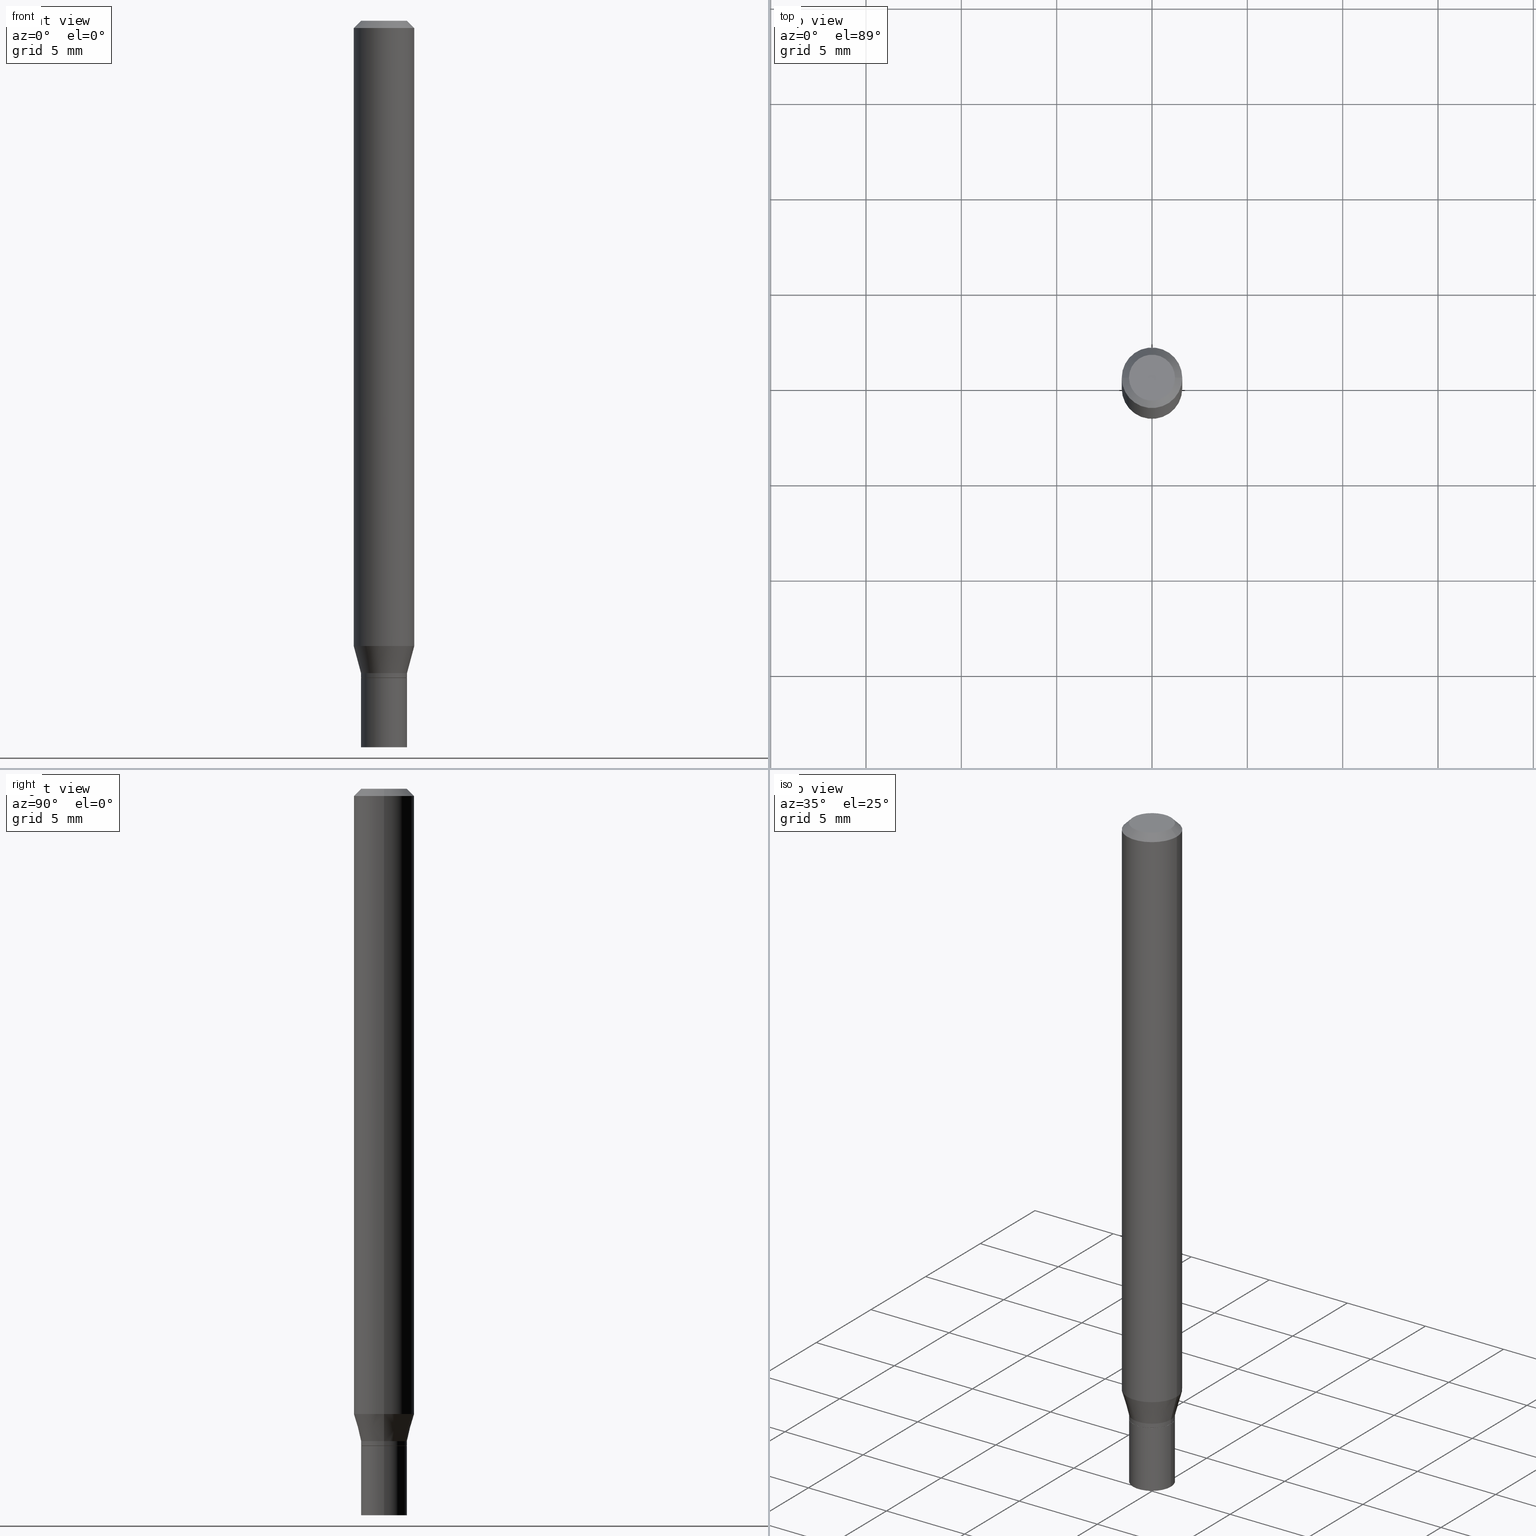
[diagram: canonical four-view strip — front | top / right | iso, engineering-drawing reading convention]
A machine part, canonical four-view strip (front | top / right | iso — engineering-drawing reading convention). The complete STEP part file that produces these views, byte-faithful:
ISO-10303-21;
HEADER;
FILE_DESCRIPTION (( 'STEP AP203' ),
    '1' );
FILE_NAME ('00436.STEP',
    '2024-03-19T21:17:59',
    ( '' ),
    ( '' ),
    'SwSTEP 2.0',
    'SolidWorks 2023',
    '' );
FILE_SCHEMA (( 'CONFIG_CONTROL_DESIGN' ));
ENDSEC;

DATA;
#1 = CIRCLE ( 'NONE', #263, 0.06250000000000000000 ) ;
#2 = EDGE_CURVE ( 'NONE', #197, #331, #219, .T. ) ;
#3 = ORIENTED_EDGE ( 'NONE', *, *, #240, .F. ) ;
#4 = CARTESIAN_POINT ( 'NONE',  ( 0.04749999999999999362, -5.069630904000245946E-15, -1.356999999999999984 ) ) ;
#5 = DIRECTION ( 'NONE',  ( -2.445468806185136877E-29, 3.491481338843145188E-15, 1.000000000000000000 ) ) ;
#6 = ORIENTED_EDGE ( 'NONE', *, *, #265, .T. ) ;
#7 = FACE_OUTER_BOUND ( 'NONE', #135, .T. ) ;
#8 = DIRECTION ( 'NONE',  ( 1.000000000000000000, -6.982962677686262766E-15, 0.000000000000000000 ) ) ;
#9 = ORIENTED_EDGE ( 'NONE', *, *, #316, .F. ) ;
#10 = DIRECTION ( 'NONE',  ( 1.000000000000000000, -6.982962677686272233E-15, 0.000000000000000000 ) ) ;
#11 = CONICAL_SURFACE ( 'NONE', #274, 0.04699999999999999317, 0.7853981633974739252 ) ;
#12 = CC_DESIGN_APPROVAL ( #32, ( #192 ) ) ;
#13 = DIRECTION ( 'NONE',  ( 1.000000000000000000, -6.982962677686273810E-15, 0.000000000000000000 ) ) ;
#14 = CARTESIAN_POINT ( 'NONE',  ( 3.668203209277705088E-31, -5.237222008264718399E-17, -0.01499999999999999944 ) ) ;
#15 = FACE_OUTER_BOUND ( 'NONE', #271, .T. ) ;
#16 = EDGE_CURVE ( 'NONE', #155, #393, #394, .T. ) ;
#17 = DIRECTION ( 'NONE',  ( 1.000000000000000000, -6.982962677686266711E-15, 4.876176775795935793E-29 ) ) ;
#18 = AXIS2_PLACEMENT_3D ( 'NONE', #430, #317, #131 ) ;
#19 = AXIS2_PLACEMENT_3D ( 'NONE', #215, #77, #140 ) ;
#20 = ORIENTED_EDGE ( 'NONE', *, *, #28, .T. ) ;
#21 = LENGTH_MEASURE_WITH_UNIT ( LENGTH_MEASURE( 0.02539999999999999897 ), #122 );
#22 = PRODUCT_DEFINITION_FORMATION_WITH_SPECIFIED_SOURCE ( 'ANY', '', #400, .NOT_KNOWN. ) ;
#23 = CARTESIAN_POINT ( 'NONE',  ( 3.294046481931379390E-29, -4.703025363421717574E-15, -1.347000000000000197 ) ) ;
#24 = ORIENTED_EDGE ( 'NONE', *, *, #139, .F. ) ;
#25 = COORDINATED_UNIVERSAL_TIME_OFFSET ( 5, 0, .BEHIND. ) ;
#26 = ORIENTED_EDGE ( 'NONE', *, *, #398, .F. ) ;
#27 = PERSON_AND_ORGANIZATION ( #418, #34 ) ;
#28 = EDGE_CURVE ( 'NONE', #119, #426, #335, .T. ) ;
#29 = DIRECTION ( 'NONE',  ( 1.000000000000000000, -6.982962677686267499E-15, 4.876176775795935793E-29 ) ) ;
#30 = CARTESIAN_POINT ( 'NONE',  ( 0.000000000000000000, 0.000000000000000000, 0.000000000000000000 ) ) ;
#31 = ORIENTED_EDGE ( 'NONE', *, *, #16, .F. ) ;
#32 = APPROVAL ( #100, 'UNSPECIFIED' ) ;
#33 = CIRCLE ( 'NONE', #303, 0.04749999999999993117 ) ;
#34 = ORGANIZATION ( 'UNSPECIFIED', 'UNSPECIFIED', '' ) ;
#35 = CARTESIAN_POINT ( 'NONE',  ( -0.04749999999999991729, -4.398686636654680226E-15, -1.356500000000000039 ) ) ;
#36 = APPROVAL_ROLE ( '' ) ;
#37 = PRODUCT_DEFINITION_SHAPE ( 'NONE', 'NONE',  #192 ) ;
#38 = CC_DESIGN_PERSON_AND_ORGANIZATION_ASSIGNMENT ( #132, #466, ( #400 ) ) ;
#39 = LINE ( 'NONE', #174, #41 ) ;
#40 = CYLINDRICAL_SURFACE ( 'NONE', #95, 0.06250000000000000000 ) ;
#41 = VECTOR ( 'NONE', #397, 39.37007874015748143 ) ;
#42 = CARTESIAN_POINT ( 'NONE',  ( -0.04749999999999993117, -4.214498965626852086E-15, -1.347000000000000197 ) ) ;
#43 =( GEOMETRIC_REPRESENTATION_CONTEXT ( 3 ) GLOBAL_UNCERTAINTY_ASSIGNED_CONTEXT ( ( #416 ) ) GLOBAL_UNIT_ASSIGNED_CONTEXT ( ( #423, #433, #238 ) ) REPRESENTATION_CONTEXT ( 'NONE', 'WORKASPACE' ) );
#44 = DIRECTION ( 'NONE',  ( -2.445468806185136597E-29, 3.491481338843145583E-15, 1.000000000000000000 ) ) ;
#45 = CARTESIAN_POINT ( 'NONE',  ( -0.04699999999999999317, -4.403985091002901839E-15, -1.356999999999999984 ) ) ;
#46 = CARTESIAN_POINT ( 'NONE',  ( 0.04699999999999999317, -5.066139422661402938E-15, -1.356999999999999984 ) ) ;
#47 = CARTESIAN_POINT ( 'NONE',  ( 3.317278435590138134E-29, -4.736194436140727720E-15, -1.356500000000000039 ) ) ;
#48 = APPROVAL ( #427, 'UNSPECIFIED' ) ;
#49 = CARTESIAN_POINT ( 'NONE',  ( 3.668203209277705088E-31, -5.237222008264718399E-17, -0.01499999999999999944 ) ) ;
#50 = LINE ( 'NONE', #436, #237 ) ;
#51 = CIRCLE ( 'NONE', #387, 0.04749999999999999362 ) ;
#52 = FACE_OUTER_BOUND ( 'NONE', #267, .T. ) ;
#53 = ADVANCED_FACE ( 'NONE', ( #104 ), #443, .T. ) ;
#54 = CARTESIAN_POINT ( 'NONE',  ( 0.04749999999999999362, -5.568912735454815688E-15, -1.500000000000000222 ) ) ;
#55 = CIRCLE ( 'NONE', #220, 0.04749999999999993117 ) ;
#56 = DIMENSIONAL_EXPONENTS ( 1.000000000000000000, 0.000000000000000000, 0.000000000000000000, 0.000000000000000000, 0.000000000000000000, 0.000000000000000000, 0.000000000000000000 ) ;
#57 = VERTEX_POINT ( 'NONE', #338 ) ;
#58 = ORIENTED_EDGE ( 'NONE', *, *, #151, .F. ) ;
#59 = ORIENTED_EDGE ( 'NONE', *, *, #110, .T. ) ;
#60 = PERSON_AND_ORGANIZATION_ROLE ( 'design_supplier' ) ;
#61 = CIRCLE ( 'NONE', #449, 0.04749999999999991729 ) ;
#62 = ORIENTED_EDGE ( 'NONE', *, *, #28, .F. ) ;
#63 = APPROVAL_DATE_TIME ( #272, #48 ) ;
#64 = ORIENTED_EDGE ( 'NONE', *, *, #315, .F. ) ;
#65 = EDGE_CURVE ( 'NONE', #269, #127, #362, .T. ) ;
#66 = AXIS2_PLACEMENT_3D ( 'NONE', #276, #98, #284 ) ;
#67 = APPROVAL_PERSON_ORGANIZATION ( #460, #48, #392 ) ;
#68 = ADVANCED_FACE ( 'NONE', ( #329 ), #258, .F. ) ;
#69 = ORIENTED_EDGE ( 'NONE', *, *, #195, .F. ) ;
#70 = CARTESIAN_POINT ( 'NONE',  ( -0.04749999999999999362, -4.650073293051385418E-15, -1.500000000000000222 ) ) ;
#71 = DIRECTION ( 'NONE',  ( 0.000000000000000000, 0.000000000000000000, 1.000000000000000000 ) ) ;
#72 = DIRECTION ( 'NONE',  ( -2.445468806185136877E-29, 3.491481338843145188E-15, 1.000000000000000000 ) ) ;
#73 = CARTESIAN_POINT ( 'NONE',  ( 3.318501169993230375E-29, -4.737940176810148435E-15, -1.356999999999999984 ) ) ;
#74 = AXIS2_PLACEMENT_3D ( 'NONE', #261, #381, #154 ) ;
#75 = CYLINDRICAL_SURFACE ( 'NONE', #185, 0.04749999999999999362 ) ;
#76 = AXIS2_PLACEMENT_3D ( 'NONE', #378, #291, #368 ) ;
#77 = DIRECTION ( 'NONE',  ( -2.445468806185136597E-29, 3.491481338843145583E-15, 1.000000000000000000 ) ) ;
#78 = DIRECTION ( 'NONE',  ( -2.445468806185136597E-29, 3.491481338843145583E-15, 1.000000000000000000 ) ) ;
#79 = DIRECTION ( 'NONE',  ( -2.445468806185136597E-29, 3.491481338843145583E-15, 1.000000000000000000 ) ) ;
#80 = CARTESIAN_POINT ( 'NONE',  ( -0.04749999999999999362, 3.375077994860475429E-16, -2.336494167871079910E-30 ) ) ;
#81 = DIRECTION ( 'NONE',  ( 1.000000000000000000, -6.982962677686271444E-15, 0.000000000000000000 ) ) ;
#82 = ORIENTED_EDGE ( 'NONE', *, *, #315, .T. ) ;
#83 = VECTOR ( 'NONE', #221, 39.37007874015748143 ) ;
#84 = AXIS2_PLACEMENT_3D ( 'NONE', #346, #307, #29 ) ;
#85 = CARTESIAN_POINT ( 'NONE',  ( 3.294046481931379390E-29, -4.703025363421717574E-15, -1.347000000000000197 ) ) ;
#86 = DIRECTION ( 'NONE',  ( -2.445468806185136877E-29, 3.491481338843145188E-15, 1.000000000000000000 ) ) ;
#87 = VECTOR ( 'NONE', #72, 39.37007874015748143 ) ;
#88 = ORIENTED_EDGE ( 'NONE', *, *, #204, .F. ) ;
#89 = APPROVAL_DATE_TIME ( #236, #32 ) ;
#90 = CARTESIAN_POINT ( 'NONE',  ( -0.04749999999999999362, -4.650073293051385418E-15, -1.356999999999999984 ) ) ;
#91 = CARTESIAN_POINT ( 'NONE',  ( -0.04699999999999999317, -4.401335863828790638E-15, -1.356999999999999984 ) ) ;
#92 = ORIENTED_EDGE ( 'NONE', *, *, #164, .F. ) ;
#93 = EDGE_CURVE ( 'NONE', #125, #297, #50, .T. ) ;
#94 = COORDINATED_UNIVERSAL_TIME_OFFSET ( 5, 0, .BEHIND. ) ;
#95 = AXIS2_PLACEMENT_3D ( 'NONE', #30, #169, #319 ) ;
#96 = AXIS2_PLACEMENT_3D ( 'NONE', #411, #44, #404 ) ;
#97 = DIRECTION ( 'NONE',  ( 1.000000000000000000, -6.982962677686271444E-15, 0.000000000000000000 ) ) ;
#98 = DIRECTION ( 'NONE',  ( -2.445468806185136597E-29, 3.491481338843145583E-15, 1.000000000000000000 ) ) ;
#99 = DATE_TIME_ROLE ( 'classification_date' ) ;
#100 = APPROVAL_STATUS ( 'not_yet_approved' ) ;
#101 = CARTESIAN_POINT ( 'NONE',  ( 0.04749999999999999362, -3.316907271900976589E-16, 2.316183968503069081E-30 ) ) ;
#102 = ORIENTED_EDGE ( 'NONE', *, *, #339, .F. ) ;
#103 = DIRECTION ( 'NONE',  ( 2.438088387897960049E-29, -3.491481338843145188E-15, -1.000000000000000000 ) ) ;
#104 = FACE_OUTER_BOUND ( 'NONE', #283, .T. ) ;
#105 = CARTESIAN_POINT ( 'NONE',  ( 3.294046481931379390E-29, -4.703025363421717574E-15, -1.347000000000000197 ) ) ;
#106 = EDGE_LOOP ( 'NONE', ( #20, #226 ) ) ;
#107 = DIRECTION ( 'NONE',  ( 1.000000000000000000, -6.982962677686261977E-15, 0.000000000000000000 ) ) ;
#108 = DESIGN_CONTEXT ( 'detailed design', #437, 'design' ) ;
#109 = PLANE ( 'NONE',  #262 ) ;
#110 = EDGE_CURVE ( 'NONE', #351, #144, #214, .T. ) ;
#111 = DIRECTION ( 'NONE',  ( -2.445468806185136877E-29, 3.491481338843145188E-15, 1.000000000000000000 ) ) ;
#112 = CYLINDRICAL_SURFACE ( 'NONE', #19, 0.04749999999999991729 ) ;
#113 = EDGE_LOOP ( 'NONE', ( #458, #165, #260, #353 ) ) ;
#114 = DIRECTION ( 'NONE',  ( 2.445468806185136597E-29, -3.491481338843145583E-15, -1.000000000000000000 ) ) ;
#115 = DIRECTION ( 'NONE',  ( 1.000000000000000000, -6.982962677686271444E-15, 0.000000000000000000 ) ) ;
#116 = CC_DESIGN_PERSON_AND_ORGANIZATION_ASSIGNMENT ( #277, #227, ( #192 ) ) ;
#117 = APPLICATION_CONTEXT ( 'configuration controlled 3d designs of mechanical parts and assemblies' ) ;
#118 = DIRECTION ( 'NONE',  ( 1.000000000000000000, -6.982962677686265922E-15, 4.876176775795935793E-29 ) ) ;
#119 = VERTEX_POINT ( 'NONE', #4 ) ;
#120 = FACE_OUTER_BOUND ( 'NONE', #421, .T. ) ;
#121 = EDGE_CURVE ( 'NONE', #155, #426, #298, .T. ) ;
#122 =( LENGTH_UNIT ( ) NAMED_UNIT ( * ) SI_UNIT ( $, .METRE. ) );
#123 = MANIFOLD_SOLID_BREP ( 'Body-Move/Copy2[2]', #207 ) ;
#124 = CIRCLE ( 'NONE', #417, 0.04749999999999999362 ) ;
#125 = VERTEX_POINT ( 'NONE', #371 ) ;
#126 = CALENDAR_DATE ( 2024, 19, 3 ) ;
#127 = VERTEX_POINT ( 'NONE', #42 ) ;
#128 = DATE_AND_TIME ( #268, #187 ) ;
#129 = ORIENTED_EDGE ( 'NONE', *, *, #139, .T. ) ;
#130 = CALENDAR_DATE ( 2024, 19, 3 ) ;
#131 = DIRECTION ( 'NONE',  ( 1.000000000000000000, -6.982962677686272233E-15, 0.000000000000000000 ) ) ;
#132 = PERSON_AND_ORGANIZATION ( #418, #34 ) ;
#133 = FACE_OUTER_BOUND ( 'NONE', #408, .T. ) ;
#134 = ADVANCED_FACE ( 'NONE', ( #186 ), #217, .T. ) ;
#135 = EDGE_LOOP ( 'NONE', ( #445, #198, #69, #88 ) ) ;
#136 = LINE ( 'NONE', #323, #83 ) ;
#137 = AXIS2_PLACEMENT_3D ( 'NONE', #153, #146, #305 ) ;
#138 = CARTESIAN_POINT ( 'NONE',  ( 3.316907271900976096E-16, 0.04749999999999999362, -1.264584670729918775E-16 ) ) ;
#139 = EDGE_CURVE ( 'NONE', #127, #178, #39, .T. ) ;
#140 = DIRECTION ( 'NONE',  ( 1.000000000000000000, -6.982962677686267499E-15, 4.876176775795935793E-29 ) ) ;
#141 = ADVANCED_BREP_SHAPE_REPRESENTATION ( '00436', ( #280, #123, #304 ), #43 ) ;
#142 = DIRECTION ( 'NONE',  ( -2.445468806185136597E-29, 3.491481338843145583E-15, 1.000000000000000000 ) ) ;
#143 = FACE_OUTER_BOUND ( 'NONE', #384, .T. ) ;
#144 = VERTEX_POINT ( 'NONE', #442 ) ;
#145 = CARTESIAN_POINT ( 'NONE',  ( 3.318501169993230375E-29, -4.737940176810148435E-15, -1.356999999999999984 ) ) ;
#146 = DIRECTION ( 'NONE',  ( -2.445468806185136597E-29, 3.491481338843145583E-15, 1.000000000000000000 ) ) ;
#147 = PLANE ( 'NONE',  #74 ) ;
#148 = ORIENTED_EDGE ( 'NONE', *, *, #345, .T. ) ;
#149 = VECTOR ( 'NONE', #409, 39.37007874015748143 ) ;
#150 = CARTESIAN_POINT ( 'NONE',  ( -0.06250000000000000000, 3.840629472727444916E-16, -0.01499999999999999944 ) ) ;
#151 = EDGE_CURVE ( 'NONE', #393, #155, #124, .T. ) ;
#152 = APPROVAL_PERSON_ORGANIZATION ( #278, #32, #36 ) ;
#153 = CARTESIAN_POINT ( 'NONE',  ( 3.318501169993230375E-29, -4.737940176810148435E-15, -1.356999999999999984 ) ) ;
#154 = DIRECTION ( 'NONE',  ( 1.000000000000000000, -6.982962677686265922E-15, 4.876176775795935793E-29 ) ) ;
#155 = VERTEX_POINT ( 'NONE', #70 ) ;
#156 = DIRECTION ( 'NONE',  ( -1.000000000000000000, 6.982962677686266711E-15, 0.000000000000000000 ) ) ;
#157 = CYLINDRICAL_SURFACE ( 'NONE', #84, 0.04749999999999999362 ) ;
#158 = CONICAL_SURFACE ( 'NONE', #357, 0.04749999999999993117, 0.2617993877991482421 ) ;
#159 = ORIENTED_EDGE ( 'NONE', *, *, #212, .F. ) ;
#160 = EDGE_CURVE ( 'NONE', #125, #351, #51, .T. ) ;
#161 = CC_DESIGN_APPROVAL ( #171, ( #22 ) ) ;
#162 = ORIENTED_EDGE ( 'NONE', *, *, #374, .T. ) ;
#163 = COORDINATED_UNIVERSAL_TIME_OFFSET ( 5, 0, .BEHIND. ) ;
#164 = EDGE_CURVE ( 'NONE', #57, #178, #175, .T. ) ;
#165 = ORIENTED_EDGE ( 'NONE', *, *, #350, .T. ) ;
#166 = DATE_AND_TIME ( #462, #456 ) ;
#167 = ORIENTED_EDGE ( 'NONE', *, *, #110, .F. ) ;
#168 = SECURITY_CLASSIFICATION_LEVEL ( 'unclassified' ) ;
#169 = DIRECTION ( 'NONE',  ( -2.445468806185136597E-29, 3.491481338843145583E-15, 1.000000000000000000 ) ) ;
#170 = ORIENTED_EDGE ( 'NONE', *, *, #65, .T. ) ;
#171 = APPROVAL ( #309, 'UNSPECIFIED' ) ;
#172 = APPLICATION_PROTOCOL_DEFINITION ( 'international standard', 'config_control_design', 1994, #117 ) ;
#173 = COORDINATED_UNIVERSAL_TIME_OFFSET ( 5, 0, .BEHIND. ) ;
#174 = CARTESIAN_POINT ( 'NONE',  ( -0.04749999999999993117, -4.365517563935670870E-15, -1.347000000000000197 ) ) ;
#175 = CIRCLE ( 'NONE', #310, 0.06250000000000000000 ) ;
#176 = CARTESIAN_POINT ( 'NONE',  ( -1.926388536342670348E-45, 2.750372284034196662E-31, 7.877379304411503798E-17 ) ) ;
#177 = CARTESIAN_POINT ( 'NONE',  ( -0.06250000000000000000, 4.440892098500626162E-16, -3.074334431409316114E-30 ) ) ;
#178 = VERTEX_POINT ( 'NONE', #290 ) ;
#179 = FACE_OUTER_BOUND ( 'NONE', #375, .T. ) ;
#180 = CARTESIAN_POINT ( 'NONE',  ( 3.576687321579069994E-29, -5.368277968210015545E-15, -1.500000000000000222 ) ) ;
#181 = ADVANCED_FACE ( 'NONE', ( #179 ), #75, .T. ) ;
#182 = ORIENTED_EDGE ( 'NONE', *, *, #164, .T. ) ;
#183 = DIRECTION ( 'NONE',  ( -2.445468806185136597E-29, 3.491481338843145583E-15, 1.000000000000000000 ) ) ;
#184 = CARTESIAN_POINT ( 'NONE',  ( 3.317278435590138134E-29, -4.736194436140727720E-15, -1.356500000000000039 ) ) ;
#185 = AXIS2_PLACEMENT_3D ( 'NONE', #440, #183, #406 ) ;
#186 = FACE_OUTER_BOUND ( 'NONE', #419, .T. ) ;
#187 = LOCAL_TIME ( 17, 17, 59.00000000000000000, #94 ) ;
#188 = CARTESIAN_POINT ( 'NONE',  ( 3.668203209277705088E-31, -5.237222008264718399E-17, -0.01499999999999999944 ) ) ;
#189 = CARTESIAN_POINT ( 'NONE',  ( 0.06250000000000000000, -4.364351673553916694E-16, 3.047610484872459871E-30 ) ) ;
#190 = EDGE_CURVE ( 'NONE', #197, #269, #211, .T. ) ;
#191 = CC_DESIGN_APPROVAL ( #48, ( #377 ) ) ;
#192 = PRODUCT_DEFINITION ( 'UNKNOWN', '', #22, #108 ) ;
#193 = ORIENTED_EDGE ( 'NONE', *, *, #93, .T. ) ;
#194 = ADVANCED_FACE ( 'NONE', ( #7 ), #11, .T. ) ;
#195 = EDGE_CURVE ( 'NONE', #459, #269, #224, .T. ) ;
#196 = VECTOR ( 'NONE', #5, 39.37007874015748143 ) ;
#197 = VERTEX_POINT ( 'NONE', #91 ) ;
#198 = ORIENTED_EDGE ( 'NONE', *, *, #190, .T. ) ;
#199 = SHAPE_DEFINITION_REPRESENTATION ( #37, #141 ) ;
#200 = ORIENTED_EDGE ( 'NONE', *, *, #350, .F. ) ;
#201 = EDGE_CURVE ( 'NONE', #297, #144, #266, .T. ) ;
#202 = CARTESIAN_POINT ( 'NONE',  ( 3.668203209277705088E-31, -5.237222008264718399E-17, -0.01499999999999999944 ) ) ;
#203 = AXIS2_PLACEMENT_3D ( 'NONE', #14, #114, #399 ) ;
#204 = EDGE_CURVE ( 'NONE', #331, #459, #136, .T. ) ;
#205 = DIRECTION ( 'NONE',  ( -2.445468806185136597E-29, 3.491481338843145583E-15, 1.000000000000000000 ) ) ;
#206 = DIRECTION ( 'NONE',  ( 1.000000000000000000, -6.982962677686262766E-15, 0.000000000000000000 ) ) ;
#207 = CLOSED_SHELL ( 'NONE', ( #134, #194, #380, #282, #356, #229, #420, #53, #68, #300, #349, #341 ) ) ;
#208 = DIRECTION ( 'NONE',  ( -2.445468806185136597E-29, 3.491481338843145583E-15, 1.000000000000000000 ) ) ;
#209 = ORIENTED_EDGE ( 'NONE', *, *, #93, .F. ) ;
#210 = LOCAL_TIME ( 17, 17, 59.00000000000000000, #163 ) ;
#211 = LINE ( 'NONE', #45, #434 ) ;
#212 = EDGE_CURVE ( 'NONE', #331, #197, #348, .T. ) ;
#213 = VERTEX_POINT ( 'NONE', #255 ) ;
#214 = LINE ( 'NONE', #150, #149 ) ;
#215 = CARTESIAN_POINT ( 'NONE',  ( 0.000000000000000000, 0.000000000000000000, 0.000000000000000000 ) ) ;
#216 = ORIENTED_EDGE ( 'NONE', *, *, #190, .F. ) ;
#217 = CYLINDRICAL_SURFACE ( 'NONE', #363, 0.04749999999999991729 ) ;
#218 = DIRECTION ( 'NONE',  ( -2.438088387897960049E-29, 3.491481338843145188E-15, 1.000000000000000000 ) ) ;
#219 = CIRCLE ( 'NONE', #18, 0.04699999999999999317 ) ;
#220 = AXIS2_PLACEMENT_3D ( 'NONE', #85, #259, #81 ) ;
#221 = DIRECTION ( 'NONE',  ( 0.7071067811865656694, -2.468850131082446387E-15, 0.7071067811865294761 ) ) ;
#222 = CARTESIAN_POINT ( 'NONE',  ( 0.04749999999999993117, -5.034716090611815085E-15, -1.347000000000000197 ) ) ;
#223 = PRODUCT_RELATED_PRODUCT_CATEGORY ( 'detail', '', ( #400 ) ) ;
#224 = CIRCLE ( 'NONE', #295, 0.04749999999999991729 ) ;
#225 = ORIENTED_EDGE ( 'NONE', *, *, #345, .F. ) ;
#226 = ORIENTED_EDGE ( 'NONE', *, *, #316, .T. ) ;
#227 = PERSON_AND_ORGANIZATION_ROLE ( 'creator' ) ;
#228 = DIRECTION ( 'NONE',  ( -2.445468806185136877E-29, 3.491481338843145188E-15, 1.000000000000000000 ) ) ;
#229 = ADVANCED_FACE ( 'NONE', ( #372 ), #158, .T. ) ;
#230 = ORIENTED_EDGE ( 'NONE', *, *, #240, .T. ) ;
#231 = CLOSED_SHELL ( 'NONE', ( #425, #286, #181, #306 ) ) ;
#232 = CONICAL_SURFACE ( 'NONE', #389, 0.06250000000000000000, 0.7853981633974457255 ) ;
#233 = ORIENTED_EDGE ( 'NONE', *, *, #398, .T. ) ;
#234 = PERSON_AND_ORGANIZATION_ROLE ( 'classification_officer' ) ;
#235 = CARTESIAN_POINT ( 'NONE',  ( 3.294046481931379390E-29, -4.703025363421717574E-15, -1.347000000000000197 ) ) ;
#236 = DATE_AND_TIME ( #326, #429 ) ;
#237 = VECTOR ( 'NONE', #254, 39.37007874015748143 ) ;
#238 =( NAMED_UNIT ( * ) SI_UNIT ( $, .STERADIAN. ) SOLID_ANGLE_UNIT ( ) );
#239 = AXIS2_PLACEMENT_3D ( 'NONE', #299, #333, #8 ) ;
#240 = EDGE_CURVE ( 'NONE', #393, #119, #325, .T. ) ;
#241 = CONICAL_SURFACE ( 'NONE', #395, 0.04749999999999993117, 0.2617993877991482421 ) ;
#242 = ORIENTED_EDGE ( 'NONE', *, *, #201, .T. ) ;
#243 = CARTESIAN_POINT ( 'NONE',  ( 0.000000000000000000, 0.000000000000000000, 0.000000000000000000 ) ) ;
#244 = CC_DESIGN_PERSON_AND_ORGANIZATION_ASSIGNMENT ( #385, #422, ( #22 ) ) ;
#245 = FACE_OUTER_BOUND ( 'NONE', #252, .T. ) ;
#246 = DIRECTION ( 'NONE',  ( -2.445468806185136597E-29, 3.491481338843145583E-15, 1.000000000000000000 ) ) ;
#247 = CARTESIAN_POINT ( 'NONE',  ( 0.06250000000000000000, -4.888073874380388472E-16, -0.01499999999999999944 ) ) ;
#248 = ORIENTED_EDGE ( 'NONE', *, *, #2, .T. ) ;
#249 = DIRECTION ( 'NONE',  ( -2.445468806185136597E-29, 3.491481338843145583E-15, 1.000000000000000000 ) ) ;
#250 = VECTOR ( 'NONE', #251, 39.37007874015748143 ) ;
#251 = DIRECTION ( 'NONE',  ( 0.2588190451025196293, 1.565188264969636167E-15, 0.9659258262890685343 ) ) ;
#252 = EDGE_LOOP ( 'NONE', ( #182, #279, #366, #26 ) ) ;
#253 = CIRCLE ( 'NONE', #96, 0.04749999999999999362 ) ;
#254 = DIRECTION ( 'NONE',  ( 0.7071067811865456854, -7.319954787623249734E-15, -0.7071067811865493491 ) ) ;
#255 = CARTESIAN_POINT ( 'NONE',  ( 0.04749999999999993117, -5.034716090611815085E-15, -1.347000000000000197 ) ) ;
#256 = DIRECTION ( 'NONE',  ( 1.000000000000000000, -6.982962677686266711E-15, 0.000000000000000000 ) ) ;
#257 = ORIENTED_EDGE ( 'NONE', *, *, #293, .F. ) ;
#258 = PLANE ( 'NONE',  #383 ) ;
#259 = DIRECTION ( 'NONE',  ( -2.445468806185136597E-29, 3.491481338843145583E-15, 1.000000000000000000 ) ) ;
#260 = ORIENTED_EDGE ( 'NONE', *, *, #463, .T. ) ;
#261 = CARTESIAN_POINT ( 'NONE',  ( 3.318501169993230375E-29, -4.737940176810148435E-15, -1.356999999999999984 ) ) ;
#262 = AXIS2_PLACEMENT_3D ( 'NONE', #180, #218, #118 ) ;
#263 = AXIS2_PLACEMENT_3D ( 'NONE', #49, #439, #256 ) ;
#264 = DIRECTION ( 'NONE',  ( -2.445468806185136597E-29, 3.491481338843145583E-15, 1.000000000000000000 ) ) ;
#265 = EDGE_CURVE ( 'NONE', #127, #213, #33, .T. ) ;
#266 = CIRCLE ( 'NONE', #285, 0.06250000000000000000 ) ;
#267 = EDGE_LOOP ( 'NONE', ( #379, #193, #242, #167 ) ) ;
#268 = CALENDAR_DATE ( 2024, 19, 3 ) ;
#269 = VERTEX_POINT ( 'NONE', #35 ) ;
#270 = DIRECTION ( 'NONE',  ( -2.445468806185136597E-29, 3.491481338843145583E-15, 1.000000000000000000 ) ) ;
#271 = EDGE_LOOP ( 'NONE', ( #159, #391 ) ) ;
#272 = DATE_AND_TIME ( #130, #403 ) ;
#273 = CARTESIAN_POINT ( 'NONE',  ( 0.04749999999999991729, -5.067885163330824442E-15, -1.356500000000000039 ) ) ;
#274 = AXIS2_PLACEMENT_3D ( 'NONE', #145, #78, #10 ) ;
#275 = VECTOR ( 'NONE', #228, 39.37007874015748143 ) ;
#276 = CARTESIAN_POINT ( 'NONE',  ( 3.668203209277704895E-29, -5.237222008264718177E-15, -1.500000000000000222 ) ) ;
#277 = PERSON_AND_ORGANIZATION ( #418, #34 ) ;
#278 = PERSON_AND_ORGANIZATION ( #418, #34 ) ;
#279 = ORIENTED_EDGE ( 'NONE', *, *, #382, .T. ) ;
#280 = MANIFOLD_SOLID_BREP ( 'Body-Move/Copy2[1]', #231 ) ;
#281 = DIRECTION ( 'NONE',  ( -2.445468806185136597E-29, 3.491481338843145583E-15, 1.000000000000000000 ) ) ;
#282 = ADVANCED_FACE ( 'NONE', ( #245 ), #40, .T. ) ;
#283 = EDGE_LOOP ( 'NONE', ( #209, #64, #59, #148 ) ) ;
#284 = DIRECTION ( 'NONE',  ( 1.000000000000000000, -6.982962677686261977E-15, 0.000000000000000000 ) ) ;
#285 = AXIS2_PLACEMENT_3D ( 'NONE', #202, #281, #370 ) ;
#286 = ADVANCED_FACE ( 'NONE', ( #133 ), #109, .F. ) ;
#287 = CIRCLE ( 'NONE', #76, 0.04749999999999999362 ) ;
#288 = CARTESIAN_POINT ( 'NONE',  ( 3.318501169993230375E-29, -4.737940176810148435E-15, -1.356999999999999984 ) ) ;
#289 = DIRECTION ( 'NONE',  ( 2.438088387897960049E-29, -3.491481338843145188E-15, -1.000000000000000000 ) ) ;
#290 = CARTESIAN_POINT ( 'NONE',  ( -0.06250000000000000000, -4.063480367318034881E-15, -1.291019237886466442 ) ) ;
#291 = DIRECTION ( 'NONE',  ( -2.445468806185136597E-29, 3.491481338843145583E-15, 1.000000000000000000 ) ) ;
#292 = ORIENTED_EDGE ( 'NONE', *, *, #121, .F. ) ;
#293 = EDGE_CURVE ( 'NONE', #213, #57, #342, .T. ) ;
#294 = CARTESIAN_POINT ( 'NONE',  ( 3.668203209277704895E-29, -5.237222008264718177E-15, -1.500000000000000222 ) ) ;
#295 = AXIS2_PLACEMENT_3D ( 'NONE', #47, #452, #388 ) ;
#296 = PLANE ( 'NONE',  #413 ) ;
#297 = VERTEX_POINT ( 'NONE', #247 ) ;
#298 = LINE ( 'NONE', #80, #87 ) ;
#299 = CARTESIAN_POINT ( 'NONE',  ( 3.157147274436261961E-29, -4.507569577168097497E-15, -1.291019237886466442 ) ) ;
#300 = ADVANCED_FACE ( 'NONE', ( #15 ), #147, .F. ) ;
#301 = CARTESIAN_POINT ( 'NONE',  ( 3.316907271901307910E-16, 0.04749999999999526129, -1.357000000000000206 ) ) ;
#302 = CYLINDRICAL_SURFACE ( 'NONE', #337, 0.06250000000000000000 ) ;
#303 = AXIS2_PLACEMENT_3D ( 'NONE', #235, #270, #390 ) ;
#304 = AXIS2_PLACEMENT_3D ( 'NONE', #324, #71, #396 ) ;
#305 = DIRECTION ( 'NONE',  ( 1.000000000000000000, -6.982962677686272233E-15, 0.000000000000000000 ) ) ;
#306 = ADVANCED_FACE ( 'NONE', ( #336 ), #296, .F. ) ;
#307 = DIRECTION ( 'NONE',  ( -2.445468806185136597E-29, 3.491481338843145583E-15, 1.000000000000000000 ) ) ;
#308 = ORIENTED_EDGE ( 'NONE', *, *, #195, .T. ) ;
#309 = APPROVAL_STATUS ( 'not_yet_approved' ) ;
#310 = AXIS2_PLACEMENT_3D ( 'NONE', #334, #246, #206 ) ;
#311 = VECTOR ( 'NONE', #330, 39.37007874015748143 ) ;
#312 = DATE_AND_TIME ( #126, #210 ) ;
#313 = ORIENTED_EDGE ( 'NONE', *, *, #121, .T. ) ;
#314 = DATE_TIME_ROLE ( 'creation_date' ) ;
#315 = EDGE_CURVE ( 'NONE', #351, #125, #287, .T. ) ;
#316 = EDGE_CURVE ( 'NONE', #426, #119, #253, .T. ) ;
#317 = DIRECTION ( 'NONE',  ( -2.445468806185136597E-29, 3.491481338843145583E-15, 1.000000000000000000 ) ) ;
#318 = APPROVAL_DATE_TIME ( #128, #171 ) ;
#319 = DIRECTION ( 'NONE',  ( 1.000000000000000000, -6.982962677686266711E-15, 4.876176775795935793E-29 ) ) ;
#320 = VECTOR ( 'NONE', #111, 39.37007874015748143 ) ;
#321 = CC_DESIGN_SECURITY_CLASSIFICATION ( #377, ( #22 ) ) ;
#322 = EDGE_LOOP ( 'NONE', ( #162, #129, #92, #257 ) ) ;
#323 = CARTESIAN_POINT ( 'NONE',  ( 0.04699999999999999317, -5.066139422661402938E-15, -1.356999999999999984 ) ) ;
#324 = CARTESIAN_POINT ( 'NONE',  ( 0.000000000000000000, 0.000000000000000000, 0.000000000000000000 ) ) ;
#325 = LINE ( 'NONE', #101, #343 ) ;
#326 = CALENDAR_DATE ( 2024, 19, 3 ) ;
#327 = DIRECTION ( 'NONE',  ( -2.445468806185136597E-29, 3.491481338843145583E-15, 1.000000000000000000 ) ) ;
#328 = ORIENTED_EDGE ( 'NONE', *, *, #382, .F. ) ;
#329 = FACE_OUTER_BOUND ( 'NONE', #465, .T. ) ;
#330 = DIRECTION ( 'NONE',  ( -2.445468806185136877E-29, 3.491481338843145188E-15, 1.000000000000000000 ) ) ;
#331 = VERTEX_POINT ( 'NONE', #46 ) ;
#332 = DIRECTION ( 'NONE',  ( -0.7071067811865656694, 7.493145998870420424E-15, 0.7071067811865294761 ) ) ;
#333 = DIRECTION ( 'NONE',  ( -2.445468806185136597E-29, 3.491481338843145583E-15, 1.000000000000000000 ) ) ;
#334 = CARTESIAN_POINT ( 'NONE',  ( 3.157147274436261961E-29, -4.507569577168097497E-15, -1.291019237886466442 ) ) ;
#335 = CIRCLE ( 'NONE', #455, 0.04749999999999999362 ) ;
#336 = FACE_OUTER_BOUND ( 'NONE', #106, .T. ) ;
#337 = AXIS2_PLACEMENT_3D ( 'NONE', #450, #264, #17 ) ;
#338 = CARTESIAN_POINT ( 'NONE',  ( 0.06250000000000000000, -4.944004744523489167E-15, -1.291019237886466442 ) ) ;
#339 = EDGE_CURVE ( 'NONE', #178, #57, #364, .T. ) ;
#340 = DIRECTION ( 'NONE',  ( 2.445468806185136597E-29, -3.491481338843145583E-15, -1.000000000000000000 ) ) ;
#341 = ADVANCED_FACE ( 'NONE', ( #444 ), #112, .T. ) ;
#342 = LINE ( 'NONE', #222, #250 ) ;
#343 = VECTOR ( 'NONE', #86, 39.37007874015748143 ) ;
#344 = APPROVAL_PERSON_ORGANIZATION ( #27, #171, #354 ) ;
#345 = EDGE_CURVE ( 'NONE', #144, #297, #1, .T. ) ;
#346 = CARTESIAN_POINT ( 'NONE',  ( 0.000000000000000000, 0.000000000000000000, 0.000000000000000000 ) ) ;
#347 = ORIENTED_EDGE ( 'NONE', *, *, #160, .T. ) ;
#348 = CIRCLE ( 'NONE', #137, 0.04699999999999999317 ) ;
#349 = ADVANCED_FACE ( 'NONE', ( #414 ), #358, .T. ) ;
#350 = EDGE_CURVE ( 'NONE', #269, #459, #61, .T. ) ;
#351 = VERTEX_POINT ( 'NONE', #446 ) ;
#352 = PERSON_AND_ORGANIZATION ( #418, #34 ) ;
#353 = ORIENTED_EDGE ( 'NONE', *, *, #265, .F. ) ;
#354 = APPROVAL_ROLE ( '' ) ;
#355 = CARTESIAN_POINT ( 'NONE',  ( 0.04749999999999991729, -3.316907271900971165E-16, 2.316183968503065578E-30 ) ) ;
#356 = ADVANCED_FACE ( 'NONE', ( #441 ), #241, .T. ) ;
#357 = AXIS2_PLACEMENT_3D ( 'NONE', #23, #432, #97 ) ;
#358 = CONICAL_SURFACE ( 'NONE', #464, 0.04699999999999999317, 0.7853981633974739252 ) ;
#359 = MECHANICAL_CONTEXT ( 'NONE', #117, 'mechanical' ) ;
#360 = APPLICATION_PROTOCOL_DEFINITION ( 'international standard', 'config_control_design', 1994, #437 ) ;
#361 = DIRECTION ( 'NONE',  ( 1.000000000000000000, -6.982962677686267499E-15, 4.876176775795935793E-29 ) ) ;
#362 = LINE ( 'NONE', #367, #320 ) ;
#363 = AXIS2_PLACEMENT_3D ( 'NONE', #243, #142, #361 ) ;
#364 = CIRCLE ( 'NONE', #239, 0.06250000000000000000 ) ;
#365 = LINE ( 'NONE', #189, #196 ) ;
#366 = ORIENTED_EDGE ( 'NONE', *, *, #201, .F. ) ;
#367 = CARTESIAN_POINT ( 'NONE',  ( -0.04749999999999991729, 3.375077994860470006E-16, -2.336494167871076407E-30 ) ) ;
#368 = DIRECTION ( 'NONE',  ( 1.000000000000000000, -6.982962677686267499E-15, 4.884662768193073002E-29 ) ) ;
#369 = EDGE_LOOP ( 'NONE', ( #216, #248, #415, #200 ) ) ;
#370 = DIRECTION ( 'NONE',  ( 1.000000000000000000, -6.982962677686266711E-15, 0.000000000000000000 ) ) ;
#371 = CARTESIAN_POINT ( 'NONE',  ( 0.04749999999999999362, -4.035134999187576651E-16, 7.877379304411762643E-17 ) ) ;
#372 = FACE_OUTER_BOUND ( 'NONE', #386, .T. ) ;
#373 = DIRECTION ( 'NONE',  ( 1.000000000000000000, -6.982962677686272233E-15, 0.000000000000000000 ) ) ;
#374 = EDGE_CURVE ( 'NONE', #213, #127, #55, .T. ) ;
#375 = EDGE_LOOP ( 'NONE', ( #292, #453, #230, #9 ) ) ;
#376 = DIRECTION ( 'NONE',  ( -1.000000000000000000, 6.982962677686265922E-15, -4.876176775795935793E-29 ) ) ;
#377 = SECURITY_CLASSIFICATION ( '', '', #168 ) ;
#378 = CARTESIAN_POINT ( 'NONE',  ( -1.926388536342670348E-45, 2.750372284034196662E-31, 7.877379304411503798E-17 ) ) ;
#379 = ORIENTED_EDGE ( 'NONE', *, *, #160, .F. ) ;
#380 = ADVANCED_FACE ( 'NONE', ( #52 ), #232, .T. ) ;
#381 = DIRECTION ( 'NONE',  ( -2.438088387897960049E-29, 3.491481338843145188E-15, 1.000000000000000000 ) ) ;
#382 = EDGE_CURVE ( 'NONE', #178, #144, #447, .T. ) ;
#383 = AXIS2_PLACEMENT_3D ( 'NONE', #138, #103, #376 ) ;
#384 = EDGE_LOOP ( 'NONE', ( #328, #461, #233, #225 ) ) ;
#385 = PERSON_AND_ORGANIZATION ( #418, #34 ) ;
#386 = EDGE_LOOP ( 'NONE', ( #24, #6, #435, #102 ) ) ;
#387 = AXIS2_PLACEMENT_3D ( 'NONE', #176, #249, #402 ) ;
#388 = DIRECTION ( 'NONE',  ( 1.000000000000000000, -6.982962677686273810E-15, 0.000000000000000000 ) ) ;
#389 = AXIS2_PLACEMENT_3D ( 'NONE', #188, #340, #156 ) ;
#390 = DIRECTION ( 'NONE',  ( 1.000000000000000000, -6.982962677686271444E-15, 0.000000000000000000 ) ) ;
#391 = ORIENTED_EDGE ( 'NONE', *, *, #2, .F. ) ;
#392 = APPROVAL_ROLE ( '' ) ;
#393 = VERTEX_POINT ( 'NONE', #54 ) ;
#394 = CIRCLE ( 'NONE', #66, 0.04749999999999999362 ) ;
#395 = AXIS2_PLACEMENT_3D ( 'NONE', #105, #401, #115 ) ;
#396 = DIRECTION ( 'NONE',  ( 1.000000000000000000, 0.000000000000000000, 0.000000000000000000 ) ) ;
#397 = DIRECTION ( 'NONE',  ( -0.2588190451025196293, 5.211531920934539209E-15, 0.9659258262890685343 ) ) ;
#398 = EDGE_CURVE ( 'NONE', #57, #297, #365, .T. ) ;
#399 = DIRECTION ( 'NONE',  ( -1.000000000000000000, 6.982962677686266711E-15, 0.000000000000000000 ) ) ;
#400 = PRODUCT ( '00436', '00436', '', ( #359 ) ) ;
#401 = DIRECTION ( 'NONE',  ( -2.445468806185136597E-29, 3.491481338843145583E-15, 1.000000000000000000 ) ) ;
#402 = DIRECTION ( 'NONE',  ( 1.000000000000000000, -6.982962677686267499E-15, 4.884662768193073002E-29 ) ) ;
#403 = LOCAL_TIME ( 17, 17, 59.00000000000000000, #454 ) ;
#404 = DIRECTION ( 'NONE',  ( 1.000000000000000000, -6.982962677686261977E-15, 0.000000000000000000 ) ) ;
#405 = ORIENTED_EDGE ( 'NONE', *, *, #463, .F. ) ;
#406 = DIRECTION ( 'NONE',  ( 1.000000000000000000, -6.982962677686267499E-15, 4.876176775795935793E-29 ) ) ;
#407 = DIRECTION ( 'NONE',  ( -1.000000000000000000, 6.982962677686265922E-15, -4.876176775795935793E-29 ) ) ;
#408 = EDGE_LOOP ( 'NONE', ( #58, #31 ) ) ;
#409 = DIRECTION ( 'NONE',  ( -0.7071067811865456854, 2.468850131082237733E-15, -0.7071067811865493491 ) ) ;
#410 = CC_DESIGN_PERSON_AND_ORGANIZATION_ASSIGNMENT ( #352, #234, ( #377 ) ) ;
#411 = CARTESIAN_POINT ( 'NONE',  ( 3.318501169993230375E-29, -4.737940176810148435E-15, -1.356999999999999984 ) ) ;
#412 = ORIENTED_EDGE ( 'NONE', *, *, #151, .T. ) ;
#413 = AXIS2_PLACEMENT_3D ( 'NONE', #301, #289, #407 ) ;
#414 = FACE_OUTER_BOUND ( 'NONE', #369, .T. ) ;
#415 = ORIENTED_EDGE ( 'NONE', *, *, #204, .T. ) ;
#416 = UNCERTAINTY_MEASURE_WITH_UNIT (LENGTH_MEASURE( 1.000000000000000082E-05 ), #423, 'distance_accuracy_value', 'NONE');
#417 = AXIS2_PLACEMENT_3D ( 'NONE', #294, #327, #438 ) ;
#418 = PERSON ( 'UNSPECIFIED', 'UNSPECIFIED', 'UNSPECIFIED', ('UNSPECIFIED'), ('UNSPECIFIED'), ('UNSPECIFIED') ) ;
#419 = EDGE_LOOP ( 'NONE', ( #308, #170, #448, #405 ) ) ;
#420 = ADVANCED_FACE ( 'NONE', ( #143 ), #302, .T. ) ;
#421 = EDGE_LOOP ( 'NONE', ( #412, #313, #62, #3 ) ) ;
#422 = PERSON_AND_ORGANIZATION_ROLE ( 'creator' ) ;
#423 =( CONVERSION_BASED_UNIT ( 'INCH', #21 ) LENGTH_UNIT ( ) NAMED_UNIT ( #56 ) );
#424 = CC_DESIGN_DATE_AND_TIME_ASSIGNMENT ( #166, #99, ( #377 ) ) ;
#425 = ADVANCED_FACE ( 'NONE', ( #120 ), #157, .T. ) ;
#426 = VERTEX_POINT ( 'NONE', #90 ) ;
#427 = APPROVAL_STATUS ( 'not_yet_approved' ) ;
#428 = LINE ( 'NONE', #355, #275 ) ;
#429 = LOCAL_TIME ( 17, 17, 59.00000000000000000, #173 ) ;
#430 = CARTESIAN_POINT ( 'NONE',  ( 3.318501169993230375E-29, -4.737940176810148435E-15, -1.356999999999999984 ) ) ;
#431 = PERSON_AND_ORGANIZATION ( #418, #34 ) ;
#432 = DIRECTION ( 'NONE',  ( -2.445468806185136597E-29, 3.491481338843145583E-15, 1.000000000000000000 ) ) ;
#433 =( NAMED_UNIT ( * ) PLANE_ANGLE_UNIT ( ) SI_UNIT ( $, .RADIAN. ) );
#434 = VECTOR ( 'NONE', #332, 39.37007874015748143 ) ;
#435 = ORIENTED_EDGE ( 'NONE', *, *, #293, .T. ) ;
#436 = CARTESIAN_POINT ( 'NONE',  ( 0.06250000000000000000, -4.811533449433679005E-16, -0.01499999999999999944 ) ) ;
#437 = APPLICATION_CONTEXT ( 'configuration controlled 3d designs of mechanical parts and assemblies' ) ;
#438 = DIRECTION ( 'NONE',  ( 1.000000000000000000, -6.982962677686261977E-15, 0.000000000000000000 ) ) ;
#439 = DIRECTION ( 'NONE',  ( -2.445468806185136597E-29, 3.491481338843145583E-15, 1.000000000000000000 ) ) ;
#440 = CARTESIAN_POINT ( 'NONE',  ( 0.000000000000000000, 0.000000000000000000, 0.000000000000000000 ) ) ;
#441 = FACE_OUTER_BOUND ( 'NONE', #322, .T. ) ;
#442 = CARTESIAN_POINT ( 'NONE',  ( -0.06250000000000000000, -1.835881688775309869E-15, -0.01499999999999999944 ) ) ;
#443 = CONICAL_SURFACE ( 'NONE', #203, 0.06250000000000000000, 0.7853981633974457255 ) ;
#444 = FACE_OUTER_BOUND ( 'NONE', #113, .T. ) ;
#445 = ORIENTED_EDGE ( 'NONE', *, *, #212, .T. ) ;
#446 = CARTESIAN_POINT ( 'NONE',  ( -0.04749999999999999362, 3.578768372314211492E-16, 7.877379304411263442E-17 ) ) ;
#447 = LINE ( 'NONE', #177, #311 ) ;
#448 = ORIENTED_EDGE ( 'NONE', *, *, #374, .F. ) ;
#449 = AXIS2_PLACEMENT_3D ( 'NONE', #184, #208, #13 ) ;
#450 = CARTESIAN_POINT ( 'NONE',  ( 0.000000000000000000, 0.000000000000000000, 0.000000000000000000 ) ) ;
#451 = CC_DESIGN_DATE_AND_TIME_ASSIGNMENT ( #312, #314, ( #192 ) ) ;
#452 = DIRECTION ( 'NONE',  ( -2.445468806185136597E-29, 3.491481338843145583E-15, 1.000000000000000000 ) ) ;
#453 = ORIENTED_EDGE ( 'NONE', *, *, #16, .T. ) ;
#454 = COORDINATED_UNIVERSAL_TIME_OFFSET ( 5, 0, .BEHIND. ) ;
#455 = AXIS2_PLACEMENT_3D ( 'NONE', #288, #205, #107 ) ;
#456 = LOCAL_TIME ( 17, 17, 59.00000000000000000, #25 ) ;
#457 = CC_DESIGN_PERSON_AND_ORGANIZATION_ASSIGNMENT ( #431, #60, ( #22 ) ) ;
#458 = ORIENTED_EDGE ( 'NONE', *, *, #65, .F. ) ;
#459 = VERTEX_POINT ( 'NONE', #273 ) ;
#460 = PERSON_AND_ORGANIZATION ( #418, #34 ) ;
#461 = ORIENTED_EDGE ( 'NONE', *, *, #339, .T. ) ;
#462 = CALENDAR_DATE ( 2024, 19, 3 ) ;
#463 = EDGE_CURVE ( 'NONE', #459, #213, #428, .T. ) ;
#464 = AXIS2_PLACEMENT_3D ( 'NONE', #73, #79, #373 ) ;
#465 = EDGE_LOOP ( 'NONE', ( #82, #347 ) ) ;
#466 = PERSON_AND_ORGANIZATION_ROLE ( 'design_owner' ) ;
ENDSEC;
END-ISO-10303-21;
